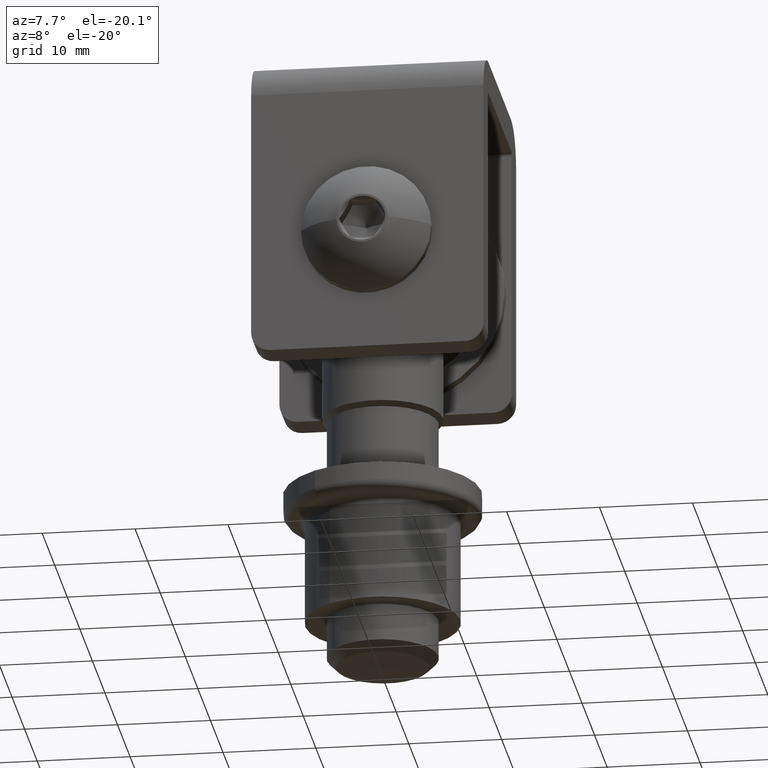
[diagram: clean part render]
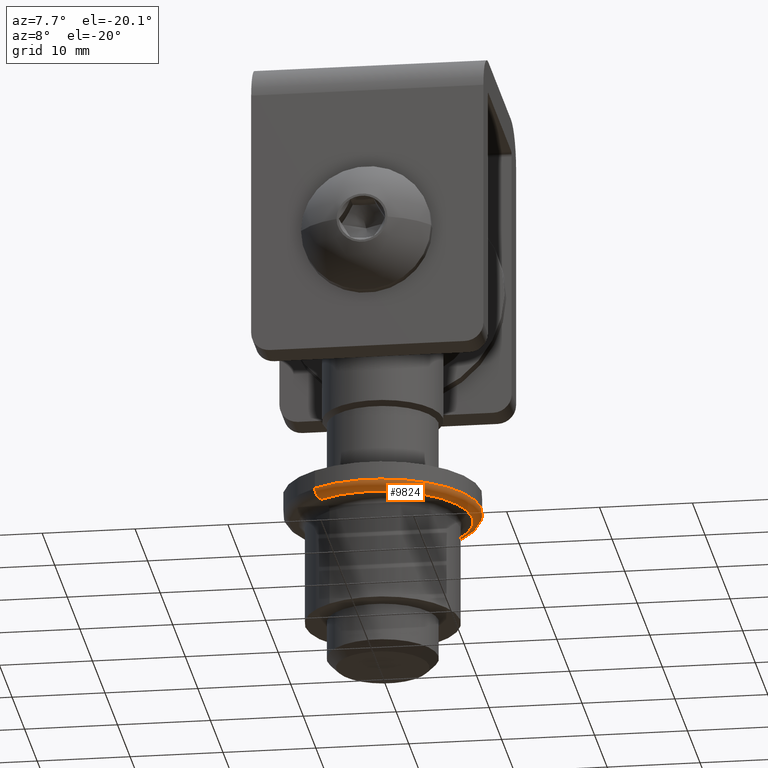
[diagram: same view with one face highlighted and labeled with its STEP entity id]
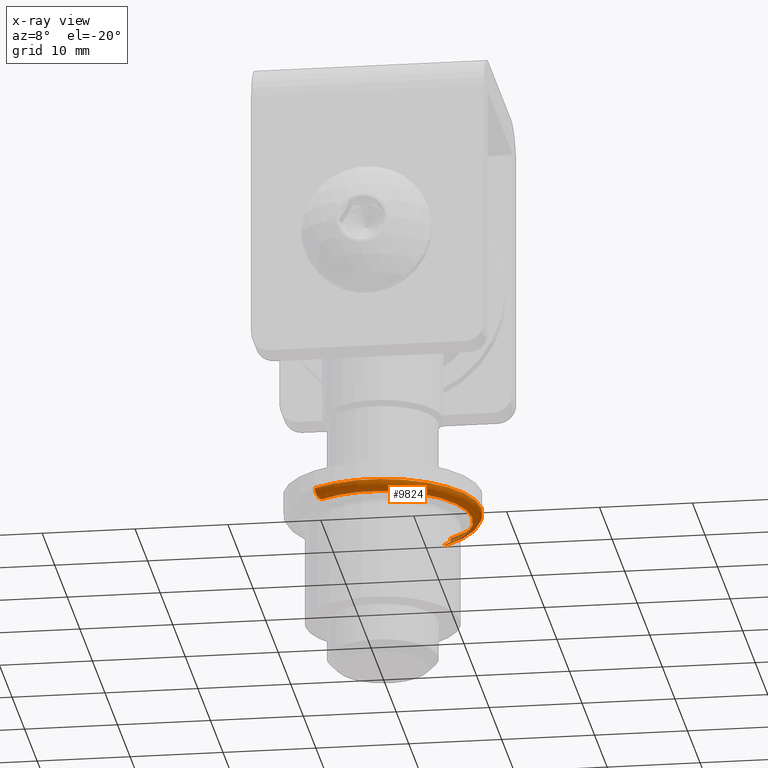
[diagram: x-ray of the same camera — body ghosted, the highlighted face saturated]
A machine part, auxiliary view. The second image highlights one B-rep face of the part: STEP entity #9824.
The next image is the same camera in x-ray: the body ghosted, the highlighted face saturated — about 2% of this face is hidden behind the body in this view.
In plain terms, the highlighted toroidal blend (fillet) surface has major radius 9.65 mm and minor (blend) radius 1 mm.
Its self-contained STEP definition (entity closure, byte-faithful):
#5 = AXIS2_PLACEMENT_3D ( 'NONE', #10854, #3167, #4241 ) ;
#576 = VERTEX_POINT ( 'NONE', #11549 ) ;
#874 = FACE_OUTER_BOUND ( 'NONE', #5505, .T. ) ;
#884 = CIRCLE ( 'NONE', #8727, 1.000000000000000000 ) ;
#1161 = CIRCLE ( 'NONE', #4815, 10.65000000000001800 ) ;
#1224 = VERTEX_POINT ( 'NONE', #2367 ) ;
#1459 = AXIS2_PLACEMENT_3D ( 'NONE', #13237, #14312, #3200 ) ;
#1494 = EDGE_CURVE ( 'NONE', #1224, #11292, #1978, .T. ) ;
#1978 = CIRCLE ( 'NONE', #5, 9.650000000000016300 ) ;
#2041 = EDGE_CURVE ( 'NONE', #4981, #11292, #12012, .T. ) ;
#2367 = CARTESIAN_POINT ( 'NONE',  ( -1.979532280212561100E-036, 3.000000000000002700, 9.650000000000016300 ) ) ;
#2902 = ORIENTED_EDGE ( 'NONE', *, *, #1494, .F. ) ;
#3007 = CARTESIAN_POINT ( 'NONE',  ( 0.0000000000000000000, 2.000000000000001800, 0.0000000000000000000 ) ) ;
#3167 = DIRECTION ( 'NONE',  ( -3.755563391555109900E-033, 1.000000000000000000, 2.600005424922768400E-033 ) ) ;
#3200 = DIRECTION ( 'NONE',  ( -2.051328787785033900E-037, -2.600005424922768700E-033, 1.000000000000000000 ) ) ;
#3935 = DIRECTION ( 'NONE',  ( -2.051328787785033900E-037, 0.0000000000000000000, 1.000000000000000000 ) ) ;
#4241 = DIRECTION ( 'NONE',  ( -2.051328787785033900E-037, 0.0000000000000000000, 1.000000000000000000 ) ) ;
#4397 = DIRECTION ( 'NONE',  ( 1.000000000000000000, 3.755563391555109900E-033, 1.224646799147353200E-016 ) ) ;
#4578 = DIRECTION ( 'NONE',  ( 3.755563391555109900E-033, -1.000000000000000000, 0.0000000000000000000 ) ) ;
#4815 = AXIS2_PLACEMENT_3D ( 'NONE', #3007, #12911, #3935 ) ;
#4981 = VERTEX_POINT ( 'NONE', #11258 ) ;
#5505 = EDGE_LOOP ( 'NONE', ( #12553, #13335, #2902, #5984 ) ) ;
#5984 = ORIENTED_EDGE ( 'NONE', *, *, #9428, .F. ) ;
#7458 = TOROIDAL_SURFACE ( 'NONE', #1459, 9.649999999999998600, 1.000000000000000000 ) ;
#8195 = AXIS2_PLACEMENT_3D ( 'NONE', #11018, #4397, #10048 ) ;
#8542 = EDGE_CURVE ( 'NONE', #4981, #576, #1161, .T. ) ;
#8727 = AXIS2_PLACEMENT_3D ( 'NONE', #12252, #12158, #4578 ) ;
#9428 = EDGE_CURVE ( 'NONE', #576, #1224, #884, .T. ) ;
#9824 = ADVANCED_FACE ( 'NONE', ( #874 ), #7458, .T. ) ;
#10048 = DIRECTION ( 'NONE',  ( 1.224646799147351500E-016, 0.0000000000000000000, -1.000000000000000000 ) ) ;
#10832 = CARTESIAN_POINT ( 'NONE',  ( 1.243016501134563500E-015, 3.000000000000002700, -9.649999999999998600 ) ) ;
#10854 = CARTESIAN_POINT ( 'NONE',  ( 0.0000000000000000000, 3.000000000000002700, 0.0000000000000000000 ) ) ;
#11018 = CARTESIAN_POINT ( 'NONE',  ( 1.181784161177197900E-015, 2.000000000000001800, -9.650000000000016300 ) ) ;
#11258 = CARTESIAN_POINT ( 'NONE',  ( -3.753378726396115600E-033, 2.000000000000001800, -10.65000000000000000 ) ) ;
#11292 = VERTEX_POINT ( 'NONE', #10832 ) ;
#11549 = CARTESIAN_POINT ( 'NONE',  ( 1.304248841091931300E-015, 2.000000000000001800, 10.65000000000000000 ) ) ;
#12012 = CIRCLE ( 'NONE', #8195, 1.000000000000000900 ) ;
#12158 = DIRECTION ( 'NONE',  ( -1.000000000000000000, -3.755563391555109900E-033, -2.051328787785033900E-037 ) ) ;
#12252 = CARTESIAN_POINT ( 'NONE',  ( -1.979532280212561100E-036, 2.000000000000001800, 9.650000000000016300 ) ) ;
#12553 = ORIENTED_EDGE ( 'NONE', *, *, #8542, .F. ) ;
#12911 = DIRECTION ( 'NONE',  ( 3.755563391555109900E-033, -1.000000000000000000, -2.600005424922768400E-033 ) ) ;
#13237 = CARTESIAN_POINT ( 'NONE',  ( 0.0000000000000000000, 2.000000000000001800, 0.0000000000000000000 ) ) ;
#13335 = ORIENTED_EDGE ( 'NONE', *, *, #2041, .T. ) ;
#14312 = DIRECTION ( 'NONE',  ( -3.755563391555109900E-033, 1.000000000000000000, 2.600005424922768400E-033 ) ) ;